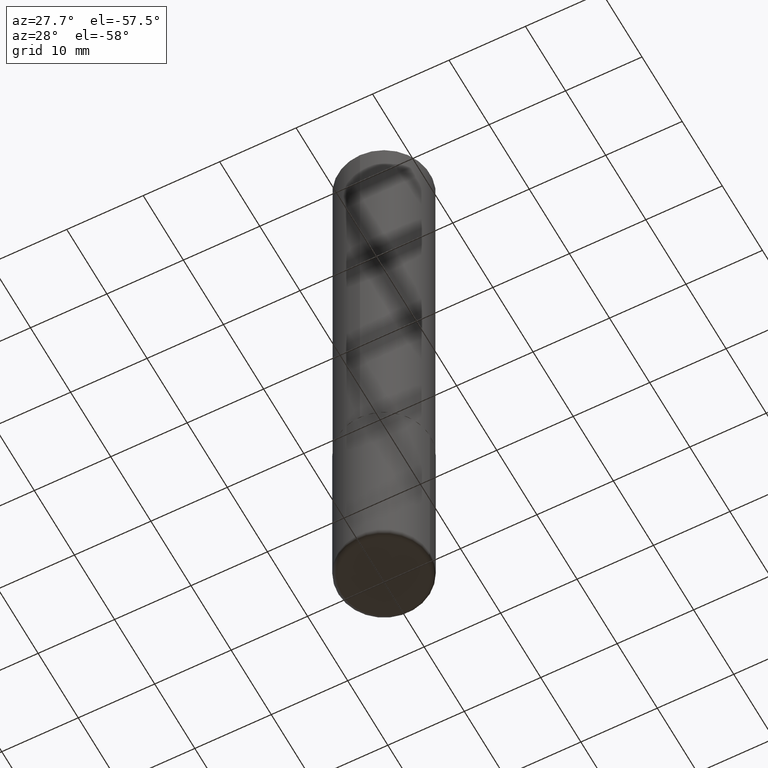
[diagram: clean part render]
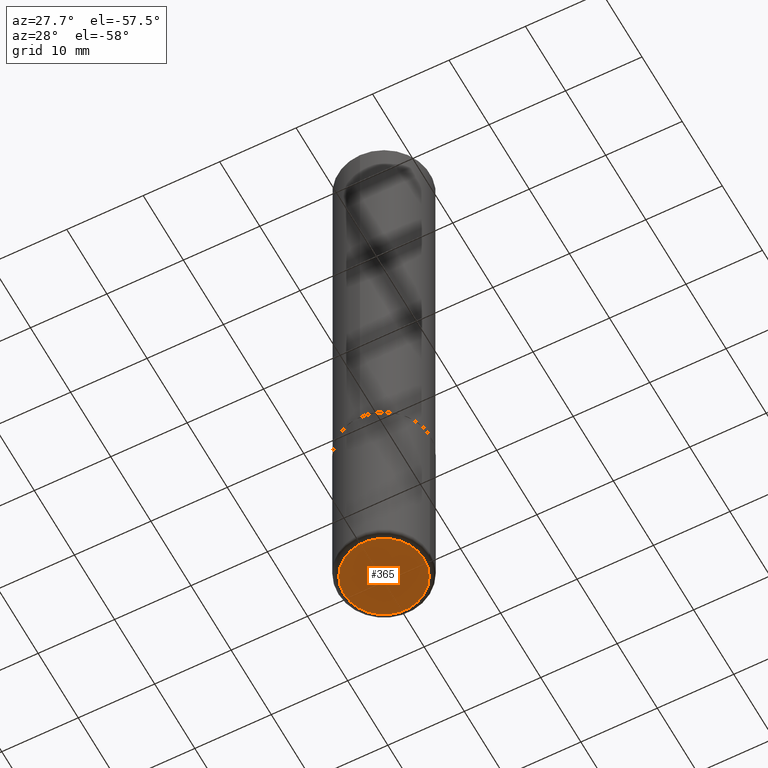
[diagram: same view with one face highlighted and labeled with its STEP entity id]
A machine part, auxiliary view. The second image highlights one B-rep face of the part: STEP entity #365.
In plain terms, the highlighted planar face has unit normal (0, -0, -1).
Its self-contained STEP definition (entity closure, byte-faithful):
#8 = CIRCLE ( 'NONE', #176, 0.2062000000000000222 ) ;
#52 = ORIENTED_EDGE ( 'NONE', *, *, #130, .F. ) ;
#56 = DIRECTION ( 'NONE',  ( -1.000000000000000000, 6.982962677686265922E-15, -4.876176775795935793E-29 ) ) ;
#57 = EDGE_LOOP ( 'NONE', ( #255, #52 ) ) ;
#66 = CIRCLE ( 'NONE', #127, 0.2062000000000000222 ) ;
#77 = CARTESIAN_POINT ( 'NONE',  ( 7.991058417971172834E-29, -1.140911357093774960E-14, -3.267700000000000937 ) ) ;
#127 = AXIS2_PLACEMENT_3D ( 'NONE', #272, #332, #400 ) ;
#130 = EDGE_CURVE ( 'NONE', #198, #341, #66, .T. ) ;
#154 = CARTESIAN_POINT ( 'NONE',  ( 0.2062000000000000222, -1.284900047507665623E-14, -3.267700000000000937 ) ) ;
#176 = AXIS2_PLACEMENT_3D ( 'NONE', #77, #308, #370 ) ;
#198 = VERTEX_POINT ( 'NONE', #377 ) ;
#236 = EDGE_CURVE ( 'NONE', #341, #198, #8, .T. ) ;
#255 = ORIENTED_EDGE ( 'NONE', *, *, #236, .F. ) ;
#272 = CARTESIAN_POINT ( 'NONE',  ( 7.991058417971172834E-29, -1.140911357093774960E-14, -3.267700000000000937 ) ) ;
#282 = CARTESIAN_POINT ( 'NONE',  ( 1.944896629755098043E-29, -2.006756137782106874E-14, -3.267700000000000937 ) ) ;
#308 = DIRECTION ( 'NONE',  ( -2.445468806185136597E-29, 3.491481338843145583E-15, 1.000000000000000000 ) ) ;
#314 = FACE_OUTER_BOUND ( 'NONE', #57, .T. ) ;
#332 = DIRECTION ( 'NONE',  ( -2.445468806185136597E-29, 3.491481338843145583E-15, 1.000000000000000000 ) ) ;
#337 = AXIS2_PLACEMENT_3D ( 'NONE', #282, #383, #56 ) ;
#341 = VERTEX_POINT ( 'NONE', #154 ) ;
#365 = ADVANCED_FACE ( 'NONE', ( #314 ), #387, .T. ) ;
#370 = DIRECTION ( 'NONE',  ( 1.000000000000000000, -6.982962677686262766E-15, 0.000000000000000000 ) ) ;
#377 = CARTESIAN_POINT ( 'NONE',  ( -0.2062000000000000222, -9.785020819353759273E-15, -3.267700000000000937 ) ) ;
#383 = DIRECTION ( 'NONE',  ( 2.438088387897960049E-29, -3.491481338843145188E-15, -1.000000000000000000 ) ) ;
#387 = PLANE ( 'NONE',  #337 ) ;
#400 = DIRECTION ( 'NONE',  ( 1.000000000000000000, -6.982962677686262766E-15, 0.000000000000000000 ) ) ;